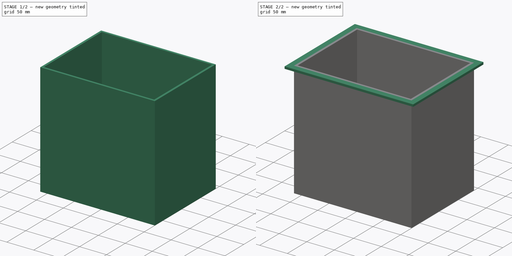
[diagram: build sequence overview — one tinted view per stage of 2, left to right]
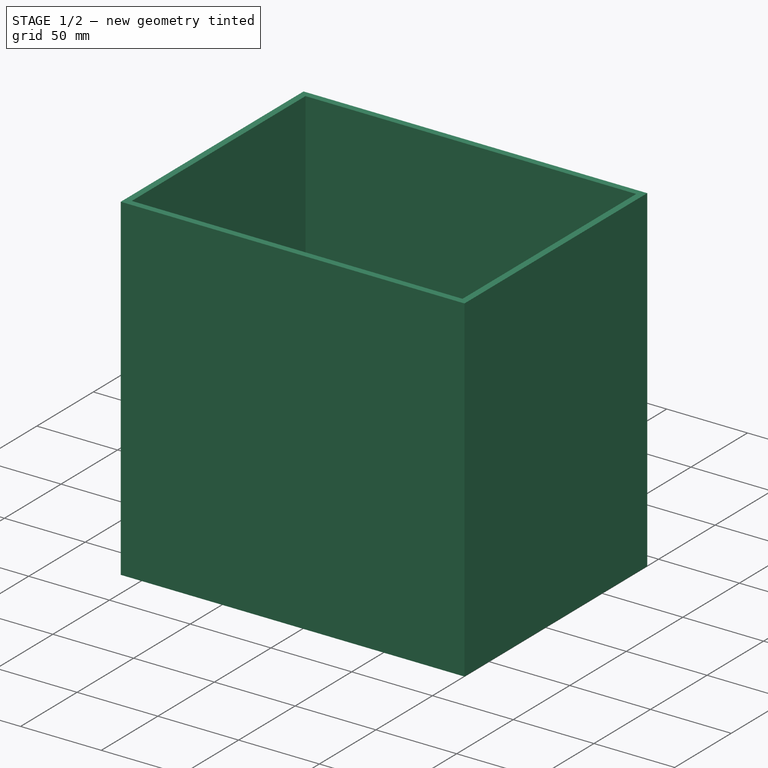
[diagram: stage 1 of 2 — iso view after this stage's code; geometry added in this stage tinted green]
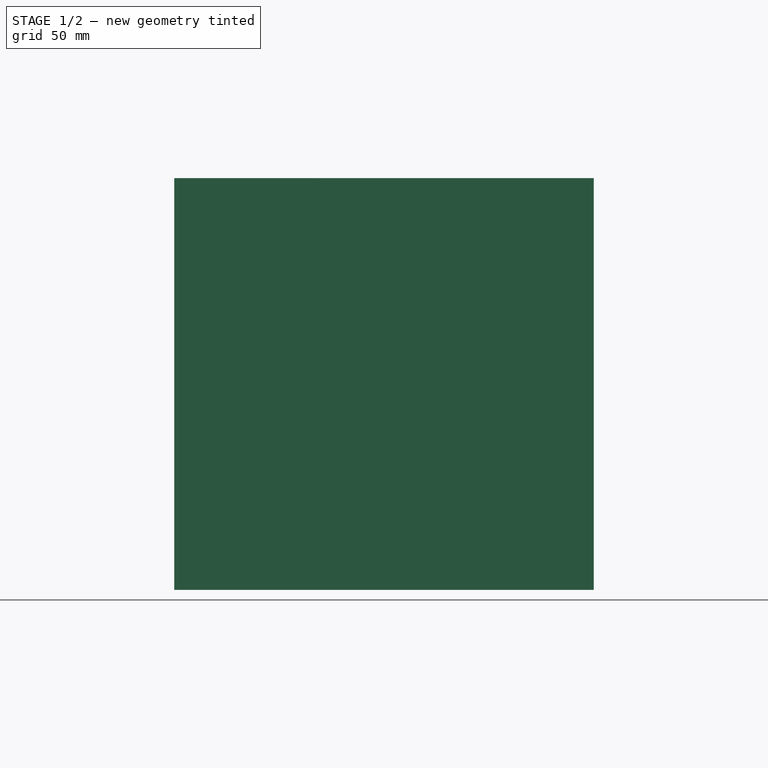
[diagram: stage 1 of 2 — front view after this stage's code; geometry added in this stage tinted green]
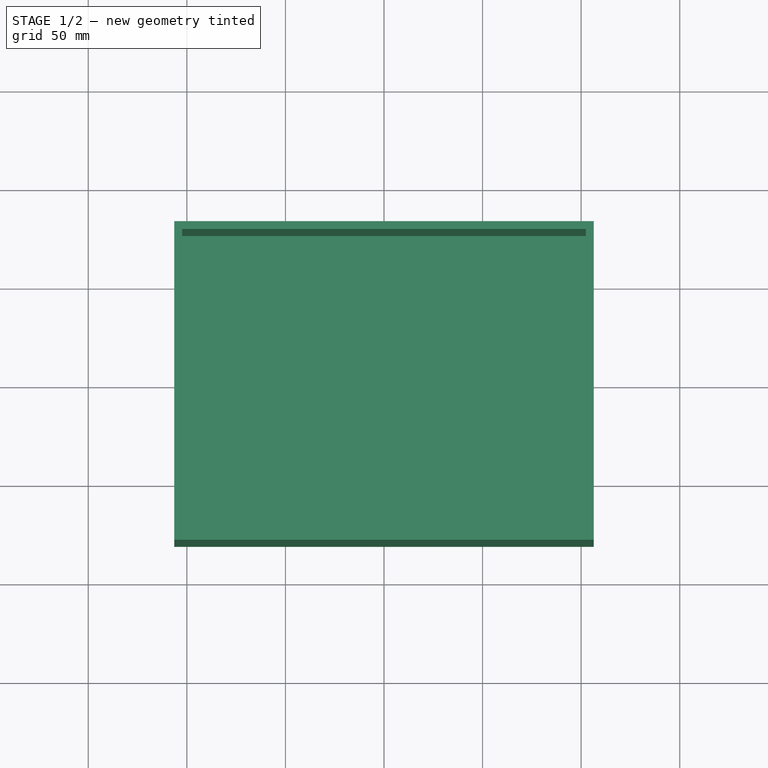
[diagram: stage 1 of 2 — top view after this stage's code; geometry added in this stage tinted green]
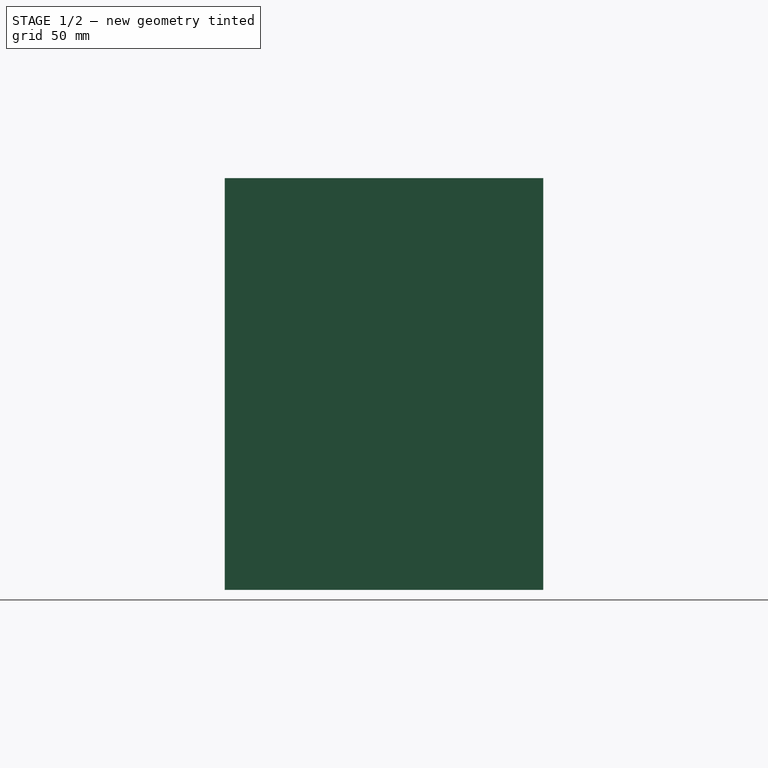
[diagram: stage 1 of 2 — right view after this stage's code; geometry added in this stage tinted green]
FCSTD DOCUMENT  (FreeCAD 0.15R4671 (Git))
Label: vat
License: All rights reserved
LicenseURL: http://en.wikipedia.org/wiki/All_rights_reserved
objects: Sketcher::SketchObject×2, PartDesign::Pad×2, Part::Thickness×1
note: 7 computed .brp shape members not serialized (recipe doc carries the construction recipe); baked Part::Feature solids carry a one-line shape summary decoded from their .brp

FEATURE [Sketcher::SketchObject] Sketch
  sketch-geometry (6):
    g0: LineSegment StartX=-102.4 StartY=-76.8 StartZ=0 EndX=102.4 EndY=-76.8 EndZ=0
    g1: LineSegment StartX=102.4 StartY=-76.8 StartZ=0 EndX=102.4 EndY=76.8 EndZ=0
    g2: LineSegment StartX=102.4 StartY=76.8 StartZ=0 EndX=-102.4 EndY=76.8 EndZ=0
    g3: LineSegment StartX=-102.4 StartY=76.8 StartZ=0 EndX=-102.4 EndY=-76.8 EndZ=0
    g4: LineSegment [constr] StartX=-102.4 StartY=76.8 StartZ=0 EndX=102.4 EndY=-76.8 EndZ=0
    g5: LineSegment [constr] StartX=-102.4 StartY=-76.8 StartZ=0 EndX=102.4 EndY=76.8 EndZ=0
  constraints (16):
    c: Coincident(g0,g1)
    c: Coincident(g1,g2)
    c: Coincident(g2,g3)
    c: Coincident(g3,g0)
    c: Horizontal(g0)
    c: Horizontal(g2)
    c: Vertical(g1)
    c: Vertical(g3)
    c: DistanceX(g2) = -204.8
    c: DistanceY(g1) = 153.6
    c: Coincident(g4,g2)
    c: Coincident(g4,g0)
    c: PointOnObject(g-1,g4)
    c: Coincident(g5,g0)
    c: Coincident(g5,g1)
    c: PointOnObject(g-1,g5)
FEATURE [PartDesign::Pad] Pad
  Length = 204.8
  Length2 = 100
  Sketch = -> Sketch
  Type = 0
FEATURE [Part::Thickness] Thickness
  Faces = -> Pad [Face6]
  Intersection = false
  Join = 2
  Mode = 0
  SelfIntersection = false
  Value = 4
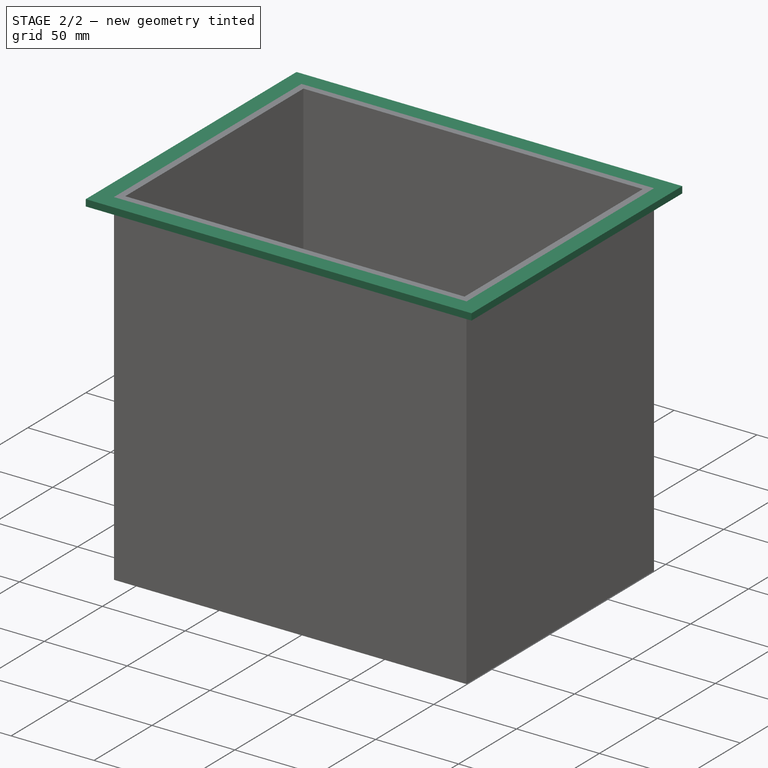
[diagram: stage 2 of 2 — iso view after this stage's code; geometry added in this stage tinted green]
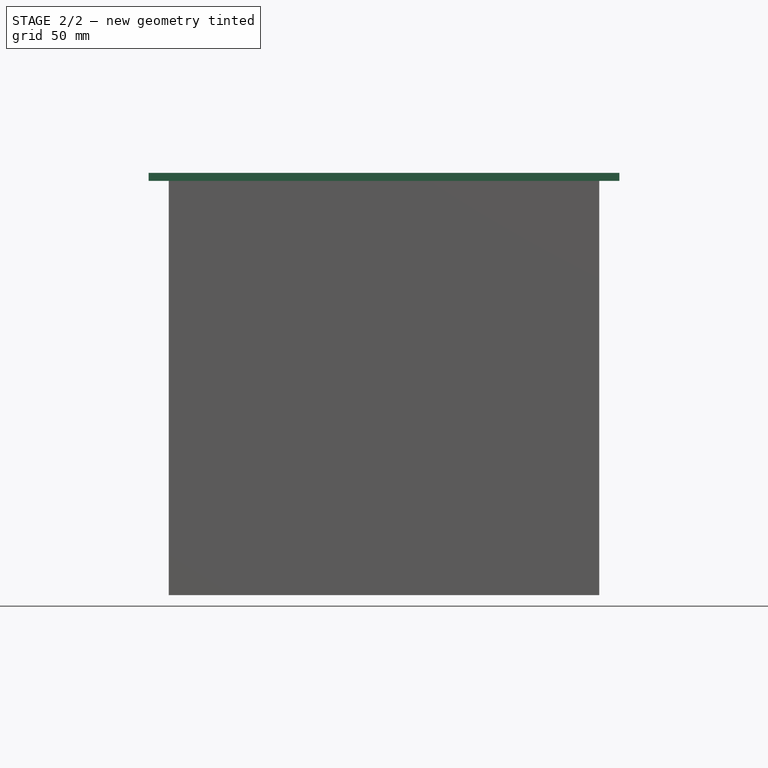
[diagram: stage 2 of 2 — front view after this stage's code; geometry added in this stage tinted green]
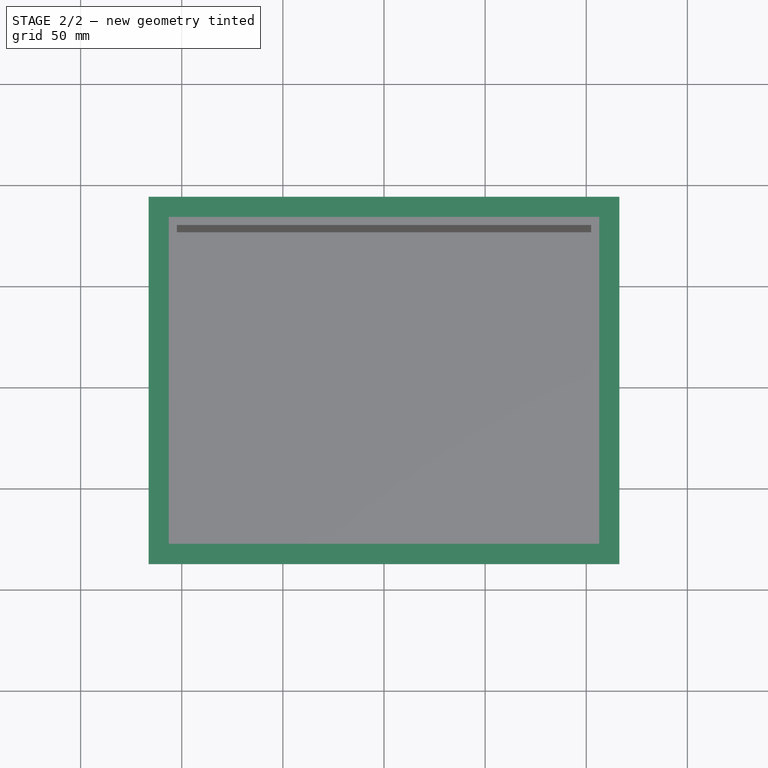
[diagram: stage 2 of 2 — top view after this stage's code; geometry added in this stage tinted green]
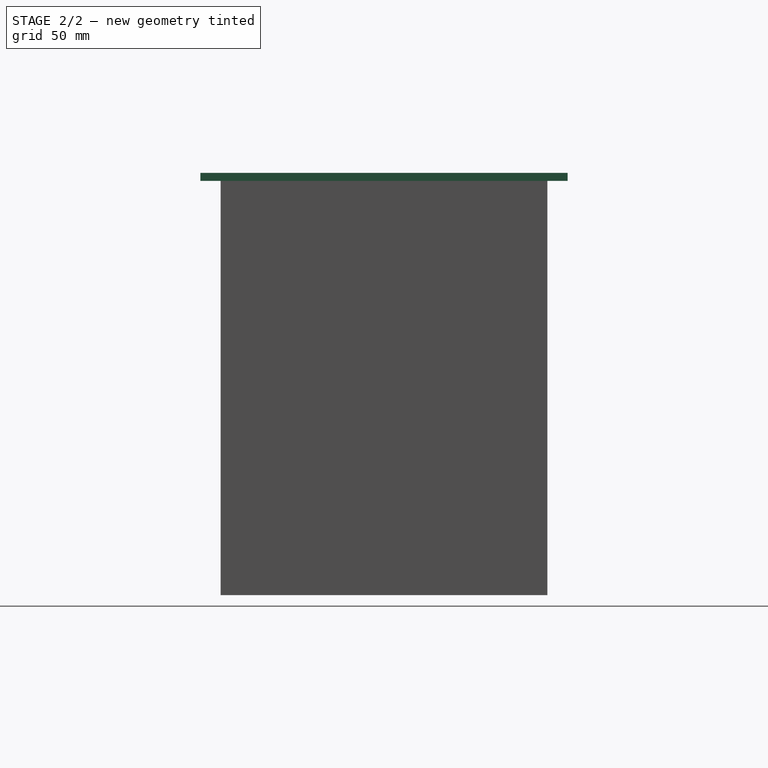
[diagram: stage 2 of 2 — right view after this stage's code; geometry added in this stage tinted green]
FEATURE [Sketcher::SketchObject] Sketch001
  ExternalGeometry = -> [Thickness]
  Placement = pos=(0,0,204.8) rot=(0,0,1;0rad)
  Support = -> Thickness [Face6]
  sketch-geometry (10):
    g0: LineSegment StartX=-116.4 StartY=-90.8 StartZ=0 EndX=116.4 EndY=-90.8 EndZ=0
    g1: LineSegment StartX=116.4 StartY=-90.8 StartZ=0 EndX=116.4 EndY=90.8 EndZ=0
    g2: LineSegment StartX=116.4 StartY=90.8 StartZ=0 EndX=-116.4 EndY=90.8 EndZ=0
    g3: LineSegment StartX=-116.4 StartY=90.8 StartZ=0 EndX=-116.4 EndY=-90.8 EndZ=0
    g4: LineSegment [constr] StartX=-116.4 StartY=90.8 StartZ=0 EndX=116.4 EndY=-90.8 EndZ=0
    g5: LineSegment [constr] StartX=116.4 StartY=90.8 StartZ=0 EndX=-116.4 EndY=-90.8 EndZ=0
    g6: LineSegment StartX=-106.4 StartY=-80.8 StartZ=0 EndX=106.4 EndY=-80.8 EndZ=0
    g7: LineSegment StartX=106.4 StartY=-80.8 StartZ=0 EndX=106.4 EndY=80.8 EndZ=0
    g8: LineSegment StartX=106.4 StartY=80.8 StartZ=0 EndX=-106.4 EndY=80.8 EndZ=0
    g9: LineSegment StartX=-106.4 StartY=80.8 StartZ=0 EndX=-106.4 EndY=-80.8 EndZ=0
  constraints (26):
    c: Coincident(g0,g1)
    c: Coincident(g1,g2)
    c: Coincident(g2,g3)
    c: Coincident(g3,g0)
    c: Horizontal(g0)
    c: Horizontal(g2)
    c: Vertical(g1)
    c: Vertical(g3)
    c: Coincident(g4,g2)
    c: Coincident(g4,g0)
    c: Coincident(g5,g1)
    c: Coincident(g5,g0)
    c: PointOnObject(g-1,g4)
    c: PointOnObject(g-1,g5)
    c: DistanceX(g-4,g1) = 10
    c: DistanceY(g-4,g1) = 10
    c: Coincident(g6,g7)
    c: Coincident(g7,g8)
    c: Coincident(g8,g9)
    c: Coincident(g9,g6)
    c: Horizontal(g6)
    c: Horizontal(g8)
    c: Vertical(g7)
    c: Vertical(g9)
    c: Coincident(g6,g-6)
    c: Coincident(g7,g-4)
FEATURE [PartDesign::Pad] Pad001
  Length = 4
  Length2 = 100
  Reversed = true
  Sketch = -> Sketch001
  Type = 0
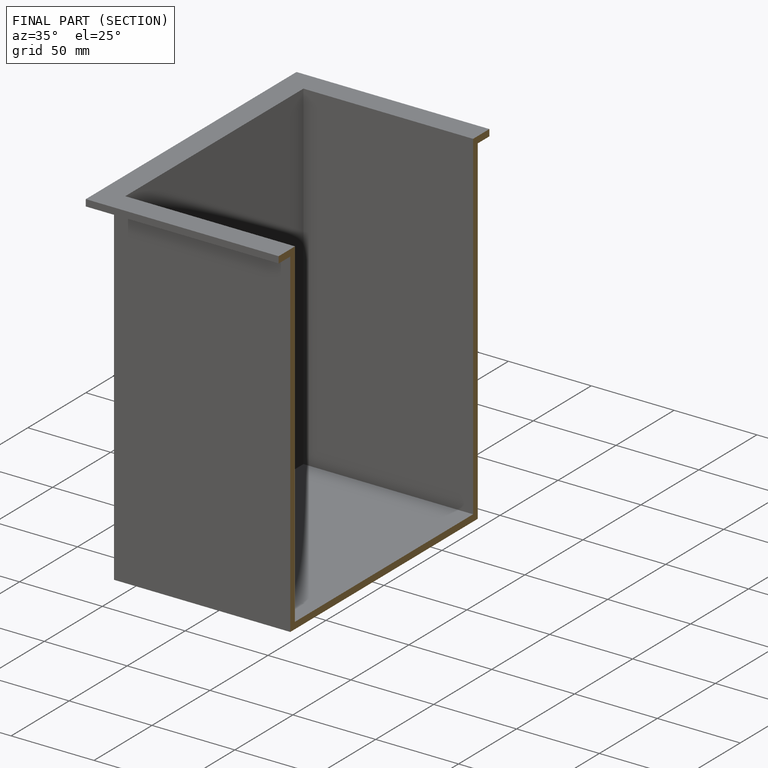
[diagram: finished part — half-section view (interior)]
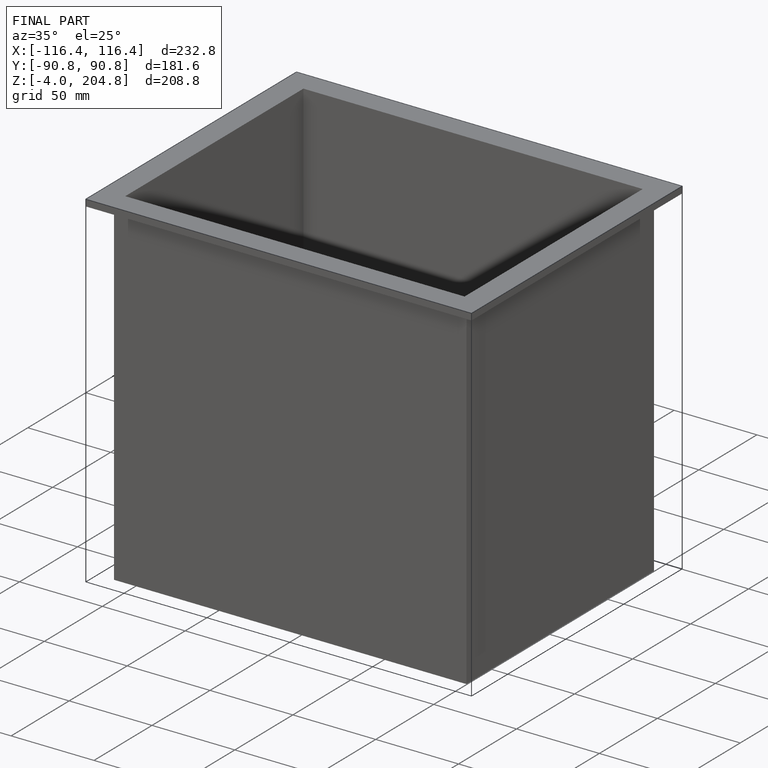
[diagram: finished part — iso view with bounding-box wireframe]
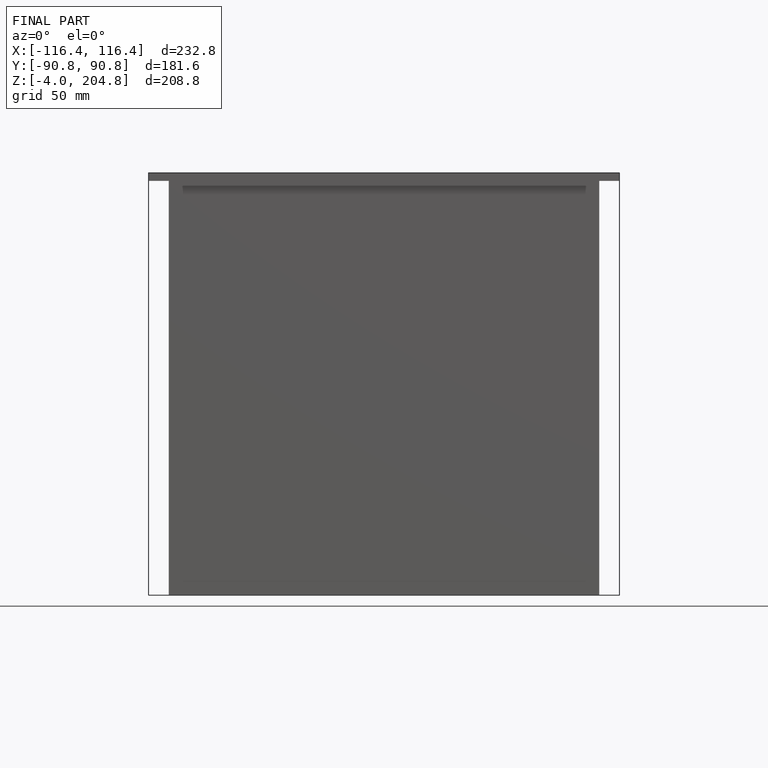
[diagram: finished part — front view with bounding-box wireframe]
